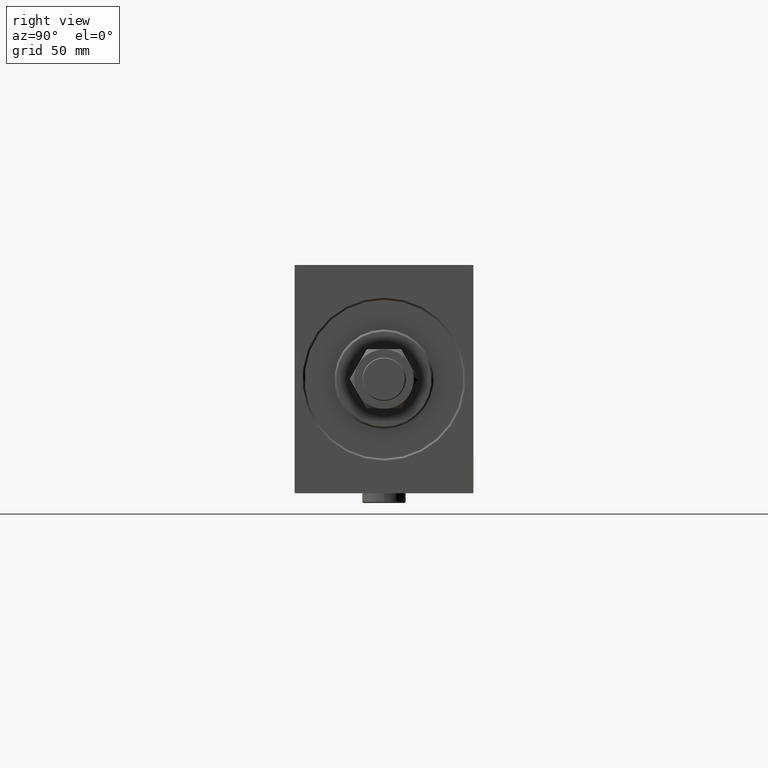
[diagram: clean part render]
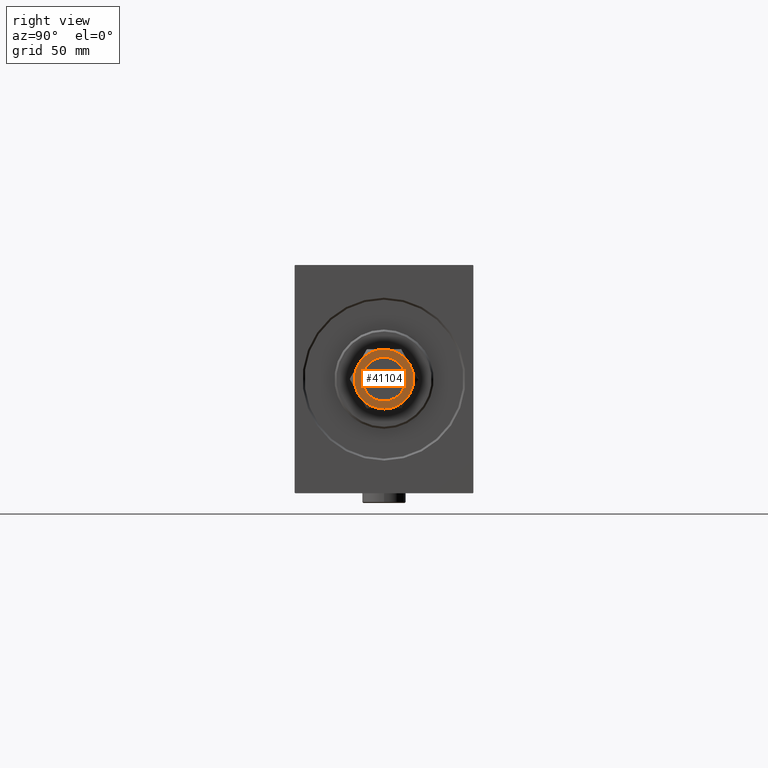
[diagram: same view with one face highlighted and labeled with its STEP entity id]
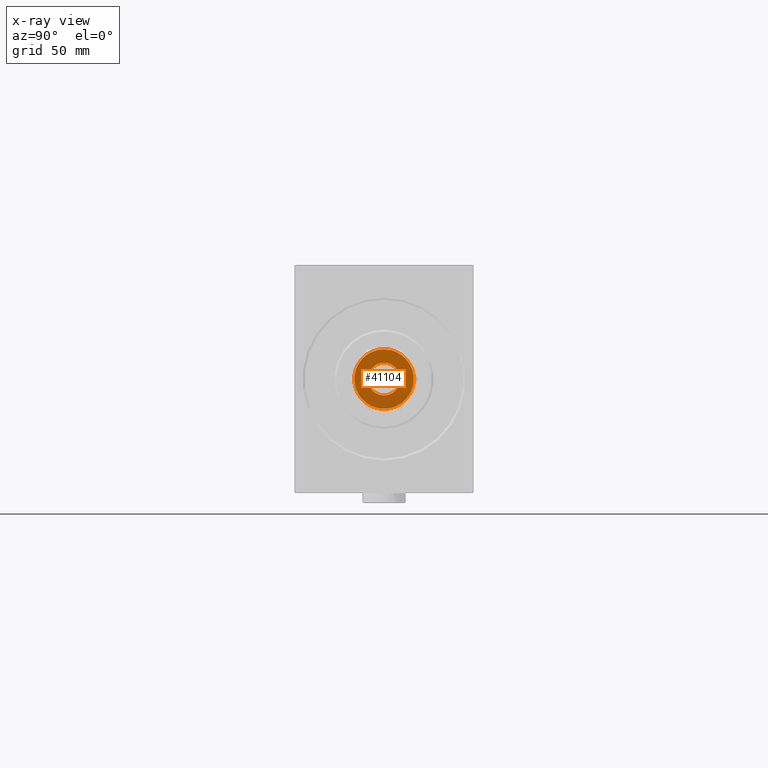
[diagram: x-ray of the same camera — body ghosted, the highlighted face saturated]
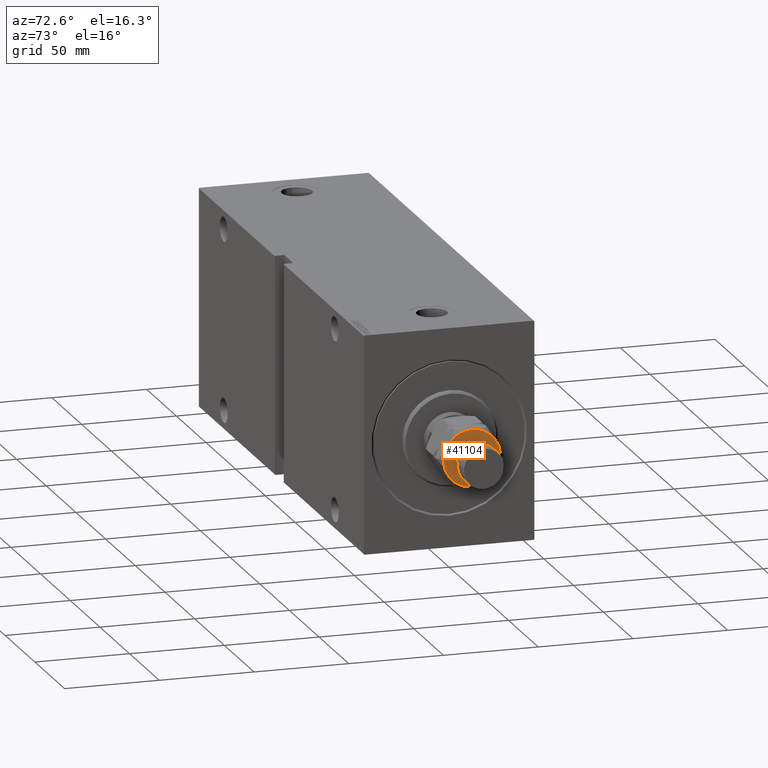
[diagram: same view with one face highlighted and labeled with its STEP entity id]
A machine part, right view. The second image highlights one B-rep face of the part: STEP entity #41104.
The next image is the same camera in x-ray: the body ghosted, the highlighted face saturated — about 0% of this face is hidden behind the body in this view.
A second angle (auxiliary view) of the same face is appended — the face is thin or edge-on in the first view.
In plain terms, the highlighted planar face has unit normal (1, 0, -0).
Its self-contained STEP definition (entity closure, byte-faithful):
#258 = EDGE_CURVE ( 'NONE', #3902, #29954, #33993, .T. ) ;
#1690 = CIRCLE ( 'NONE', #27716, 8.200000000000001066 ) ;
#2547 = EDGE_CURVE ( 'NONE', #5511, #3902, #28115, .T. ) ;
#3537 = CIRCLE ( 'NONE', #45920, 14.99999999999999645 ) ;
#3902 = VERTEX_POINT ( 'NONE', #4898 ) ;
#4409 = ORIENTED_EDGE ( 'NONE', *, *, #10562, .T. ) ;
#4898 = CARTESIAN_POINT ( 'NONE',  ( -7.500000000000000888, -12.99038105676657828, 25.00000000000000000 ) ) ;
#5248 = ORIENTED_EDGE ( 'NONE', *, *, #39755, .T. ) ;
#5511 = VERTEX_POINT ( 'NONE', #40119 ) ;
#5693 = VERTEX_POINT ( 'NONE', #18107 ) ;
#6398 = FACE_OUTER_BOUND ( 'NONE', #40432, .T. ) ;
#6636 = FACE_BOUND ( 'NONE', #27650, .T. ) ;
#6748 = CARTESIAN_POINT ( 'NONE',  ( 8.200000000000001066, 0.000000000000000000, 25.00000000000000000 ) ) ;
#7449 = ORIENTED_EDGE ( 'NONE', *, *, #30994, .T. ) ;
#8083 = CARTESIAN_POINT ( 'NONE',  ( 0.000000000000000000, 0.000000000000000000, 25.00000000000000000 ) ) ;
#9940 = ORIENTED_EDGE ( 'NONE', *, *, #258, .T. ) ;
#10141 = AXIS2_PLACEMENT_3D ( 'NONE', #44830, #31331, #45295 ) ;
#10562 = EDGE_CURVE ( 'NONE', #37979, #5511, #22271, .T. ) ;
#11202 = CARTESIAN_POINT ( 'NONE',  ( 14.99999999999999645, 1.502314598737159426E-15, 25.00000000000000000 ) ) ;
#12820 = CARTESIAN_POINT ( 'NONE',  ( -7.500000000000000000, 12.99038105676657651, 25.00000000000000000 ) ) ;
#14333 = DIRECTION ( 'NONE',  ( 0.000000000000000000, 0.000000000000000000, 1.000000000000000000 ) ) ;
#15007 = EDGE_CURVE ( 'NONE', #5693, #21129, #39848, .T. ) ;
#15648 = DIRECTION ( 'NONE',  ( 1.000000000000000000, 0.000000000000000000, 0.000000000000000000 ) ) ;
#16556 = CARTESIAN_POINT ( 'NONE',  ( 0.000000000000000000, 0.000000000000000000, 25.00000000000000000 ) ) ;
#16630 = CARTESIAN_POINT ( 'NONE',  ( 0.000000000000000000, 0.000000000000000000, 25.00000000000000000 ) ) ;
#17921 = CIRCLE ( 'NONE', #20135, 14.99999999999999645 ) ;
#18107 = CARTESIAN_POINT ( 'NONE',  ( -8.200000000000001066, 1.004210375300829674E-15, 25.00000000000000000 ) ) ;
#18766 = DIRECTION ( 'NONE',  ( 0.000000000000000000, -0.000000000000000000, 1.000000000000000000 ) ) ;
#19130 = DIRECTION ( 'NONE',  ( 0.000000000000000000, -0.000000000000000000, 1.000000000000000000 ) ) ;
#19876 = DIRECTION ( 'NONE',  ( 0.000000000000000000, -0.000000000000000000, 1.000000000000000000 ) ) ;
#19900 = DIRECTION ( 'NONE',  ( -0.000000000000000000, 0.000000000000000000, -1.000000000000000000 ) ) ;
#20135 = AXIS2_PLACEMENT_3D ( 'NONE', #16556, #24487, #23791 ) ;
#21095 = DIRECTION ( 'NONE',  ( 1.000000000000000000, 0.000000000000000000, 0.000000000000000000 ) ) ;
#21129 = VERTEX_POINT ( 'NONE', #6748 ) ;
#21644 = ORIENTED_EDGE ( 'NONE', *, *, #2547, .T. ) ;
#22271 = CIRCLE ( 'NONE', #45329, 14.99999999999999645 ) ;
#22454 = VERTEX_POINT ( 'NONE', #25246 ) ;
#22497 = CARTESIAN_POINT ( 'NONE',  ( 0.000000000000000000, 0.000000000000000000, 25.00000000000000000 ) ) ;
#23562 = CARTESIAN_POINT ( 'NONE',  ( 0.000000000000000000, 0.000000000000000000, 25.00000000000000000 ) ) ;
#23641 = CARTESIAN_POINT ( 'NONE',  ( 0.000000000000000000, 0.000000000000000000, 25.00000000000000000 ) ) ;
#23791 = DIRECTION ( 'NONE',  ( 1.000000000000000000, 0.000000000000000000, 0.000000000000000000 ) ) ;
#24487 = DIRECTION ( 'NONE',  ( 0.000000000000000000, -0.000000000000000000, 1.000000000000000000 ) ) ;
#25246 = CARTESIAN_POINT ( 'NONE',  ( 7.499999999999998224, 12.99038105676657651, 25.00000000000000000 ) ) ;
#26856 = CIRCLE ( 'NONE', #45445, 14.99999999999999645 ) ;
#26872 = DIRECTION ( 'NONE',  ( 1.000000000000000000, 0.000000000000000000, 0.000000000000000000 ) ) ;
#27374 = ORIENTED_EDGE ( 'NONE', *, *, #15007, .T. ) ;
#27650 = EDGE_LOOP ( 'NONE', ( #30543, #27374 ) ) ;
#27716 = AXIS2_PLACEMENT_3D ( 'NONE', #23641, #19900, #37859 ) ;
#28079 = CARTESIAN_POINT ( 'NONE',  ( 0.000000000000000000, 0.000000000000000000, 25.00000000000000000 ) ) ;
#28115 = CIRCLE ( 'NONE', #44460, 14.99999999999999645 ) ;
#28268 = PLANE ( 'NONE',  #44740 ) ;
#29954 = VERTEX_POINT ( 'NONE', #33676 ) ;
#30188 = DIRECTION ( 'NONE',  ( 1.000000000000000000, 0.000000000000000000, 0.000000000000000000 ) ) ;
#30379 = CARTESIAN_POINT ( 'NONE',  ( 0.000000000000000000, 0.000000000000000000, 25.00000000000000000 ) ) ;
#30543 = ORIENTED_EDGE ( 'NONE', *, *, #43711, .T. ) ;
#30994 = EDGE_CURVE ( 'NONE', #39960, #22454, #3537, .T. ) ;
#31082 = DIRECTION ( 'NONE',  ( 0.000000000000000000, -0.000000000000000000, 1.000000000000000000 ) ) ;
#31331 = DIRECTION ( 'NONE',  ( -0.000000000000000000, 0.000000000000000000, -1.000000000000000000 ) ) ;
#33211 = DIRECTION ( 'NONE',  ( 0.000000000000000000, -0.000000000000000000, 1.000000000000000000 ) ) ;
#33676 = CARTESIAN_POINT ( 'NONE',  ( 7.500000000000001776, -12.99038105676657473, 25.00000000000000000 ) ) ;
#33993 = CIRCLE ( 'NONE', #42180, 14.99999999999999645 ) ;
#37859 = DIRECTION ( 'NONE',  ( 1.000000000000000000, 0.000000000000000000, 0.000000000000000000 ) ) ;
#37979 = VERTEX_POINT ( 'NONE', #12820 ) ;
#38774 = DIRECTION ( 'NONE',  ( 1.000000000000000000, 0.000000000000000000, -0.000000000000000000 ) ) ;
#38957 = EDGE_CURVE ( 'NONE', #22454, #37979, #17921, .T. ) ;
#39755 = EDGE_CURVE ( 'NONE', #29954, #39960, #26856, .T. ) ;
#39848 = CIRCLE ( 'NONE', #10141, 8.200000000000001066 ) ;
#39960 = VERTEX_POINT ( 'NONE', #11202 ) ;
#40119 = CARTESIAN_POINT ( 'NONE',  ( -14.99999999999999645, 0.000000000000000000, 25.00000000000000000 ) ) ;
#40432 = EDGE_LOOP ( 'NONE', ( #5248, #7449, #46092, #4409, #21644, #9940 ) ) ;
#41104 = ADVANCED_FACE ( 'NONE', ( #6636, #6398 ), #28268, .T. ) ;
#42180 = AXIS2_PLACEMENT_3D ( 'NONE', #8083, #33211, #30188 ) ;
#43711 = EDGE_CURVE ( 'NONE', #21129, #5693, #1690, .T. ) ;
#43921 = DIRECTION ( 'NONE',  ( 1.000000000000000000, 0.000000000000000000, 0.000000000000000000 ) ) ;
#44460 = AXIS2_PLACEMENT_3D ( 'NONE', #30379, #19876, #26872 ) ;
#44740 = AXIS2_PLACEMENT_3D ( 'NONE', #16630, #31082, #38774 ) ;
#44830 = CARTESIAN_POINT ( 'NONE',  ( 0.000000000000000000, 0.000000000000000000, 25.00000000000000000 ) ) ;
#45295 = DIRECTION ( 'NONE',  ( 1.000000000000000000, 0.000000000000000000, 0.000000000000000000 ) ) ;
#45329 = AXIS2_PLACEMENT_3D ( 'NONE', #22497, #18766, #43921 ) ;
#45445 = AXIS2_PLACEMENT_3D ( 'NONE', #23562, #19130, #15648 ) ;
#45920 = AXIS2_PLACEMENT_3D ( 'NONE', #28079, #14333, #21095 ) ;
#46092 = ORIENTED_EDGE ( 'NONE', *, *, #38957, .T. ) ;